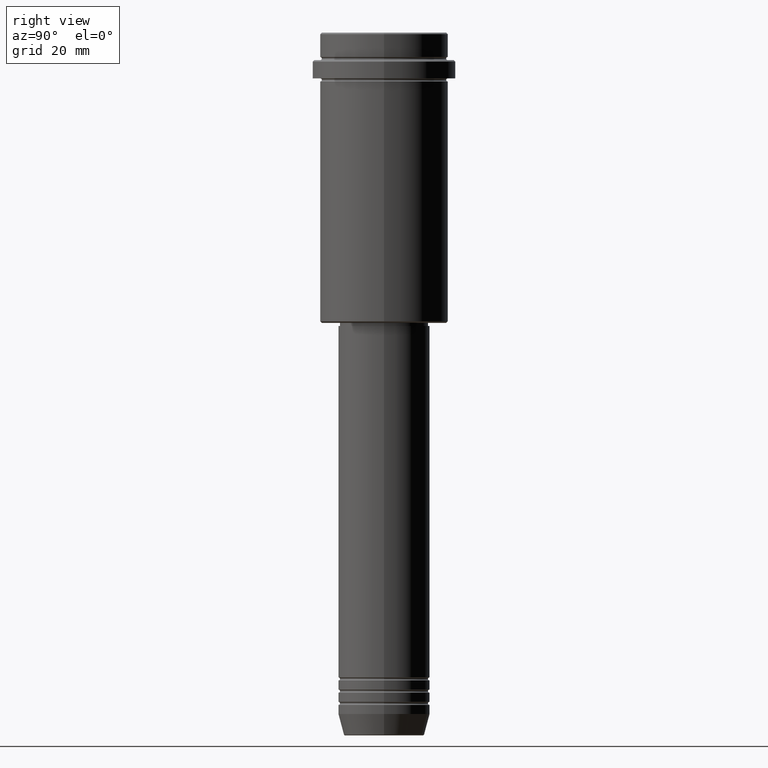
[diagram: clean part render]
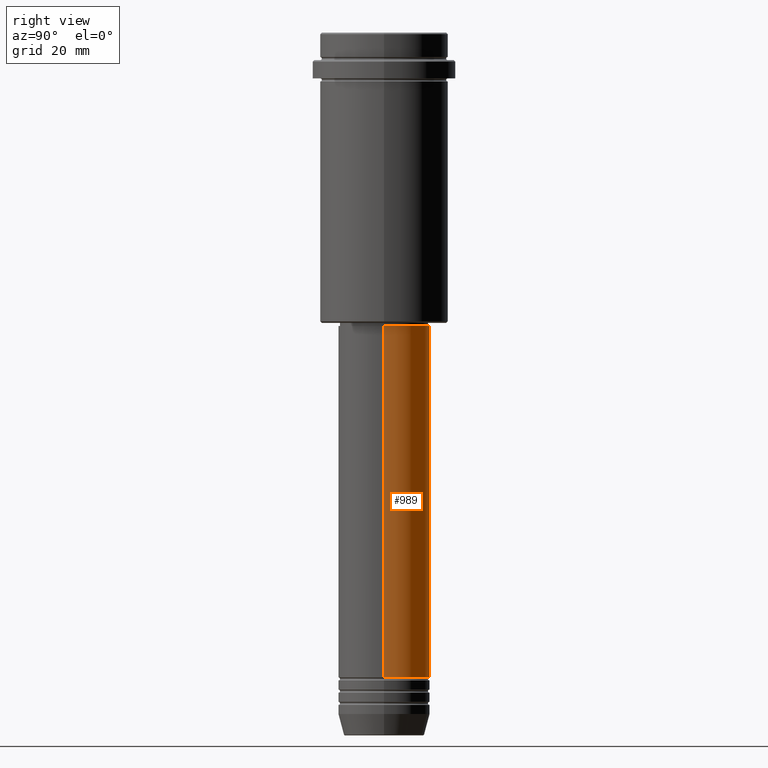
[diagram: same view with one face highlighted and labeled with its STEP entity id]
A machine part, right view. The second image highlights one B-rep face of the part: STEP entity #989.
In plain terms, the highlighted cylindrical surface (partial cylindrical patch) has radius 15 mm, axis along (-0, -0, 1).
Its self-contained STEP definition (entity closure, byte-faithful):
#12 = LINE ( 'NONE', #434, #1319 ) ;
#52 = ORIENTED_EDGE ( 'NONE', *, *, #64, .T. ) ;
#64 = EDGE_CURVE ( 'NONE', #1035, #1108, #1134, .T. ) ;
#89 = CARTESIAN_POINT ( 'NONE',  ( -15.00000000000000000, 1.836970198721029589E-15, -96.00000000000000000 ) ) ;
#219 = AXIS2_PLACEMENT_3D ( 'NONE', #1380, #391, #1172 ) ;
#302 = CARTESIAN_POINT ( 'NONE',  ( 15.00000000000000000, 0.000000000000000000, -210.9999999999999432 ) ) ;
#325 = CARTESIAN_POINT ( 'NONE',  ( -15.00000000000000000, 1.836970198721029589E-15, -210.9999999999999432 ) ) ;
#388 = CARTESIAN_POINT ( 'NONE',  ( 15.00000000000000000, 0.000000000000000000, -96.00000000000000000 ) ) ;
#391 = DIRECTION ( 'NONE',  ( -0.000000000000000000, -0.000000000000000000, 1.000000000000000000 ) ) ;
#401 = DIRECTION ( 'NONE',  ( 1.000000000000000000, 0.000000000000000000, 0.000000000000000000 ) ) ;
#432 = ORIENTED_EDGE ( 'NONE', *, *, #1142, .T. ) ;
#434 = CARTESIAN_POINT ( 'NONE',  ( -15.00000000000000000, 1.836970198721029589E-15, 0.000000000000000000 ) ) ;
#540 = DIRECTION ( 'NONE',  ( -0.000000000000000000, -0.000000000000000000, 1.000000000000000000 ) ) ;
#551 = VERTEX_POINT ( 'NONE', #89 ) ;
#566 = VECTOR ( 'NONE', #749, 1000.000000000000000 ) ;
#626 = EDGE_CURVE ( 'NONE', #1395, #551, #791, .T. ) ;
#749 = DIRECTION ( 'NONE',  ( -0.000000000000000000, -0.000000000000000000, 1.000000000000000000 ) ) ;
#751 = CARTESIAN_POINT ( 'NONE',  ( 0.000000000000000000, 0.000000000000000000, -96.00000000000000000 ) ) ;
#791 = CIRCLE ( 'NONE', #1335, 15.00000000000000000 ) ;
#843 = ORIENTED_EDGE ( 'NONE', *, *, #982, .F. ) ;
#873 = DIRECTION ( 'NONE',  ( -0.000000000000000000, -0.000000000000000000, 1.000000000000000000 ) ) ;
#926 = AXIS2_PLACEMENT_3D ( 'NONE', #985, #1196, #1393 ) ;
#979 = FACE_OUTER_BOUND ( 'NONE', #1112, .T. ) ;
#982 = EDGE_CURVE ( 'NONE', #1035, #1395, #1170, .T. ) ;
#985 = CARTESIAN_POINT ( 'NONE',  ( 0.000000000000000000, 0.000000000000000000, -210.9999999999999432 ) ) ;
#989 = ADVANCED_FACE ( 'NONE', ( #979 ), #1176, .T. ) ;
#1035 = VERTEX_POINT ( 'NONE', #302 ) ;
#1108 = VERTEX_POINT ( 'NONE', #325 ) ;
#1112 = EDGE_LOOP ( 'NONE', ( #52, #432, #1291, #843 ) ) ;
#1134 = CIRCLE ( 'NONE', #926, 15.00000000000000000 ) ;
#1142 = EDGE_CURVE ( 'NONE', #1108, #551, #12, .T. ) ;
#1170 = LINE ( 'NONE', #1290, #566 ) ;
#1172 = DIRECTION ( 'NONE',  ( 1.000000000000000000, 0.000000000000000000, 0.000000000000000000 ) ) ;
#1176 = CYLINDRICAL_SURFACE ( 'NONE', #219, 15.00000000000000000 ) ;
#1196 = DIRECTION ( 'NONE',  ( -0.000000000000000000, -0.000000000000000000, 1.000000000000000000 ) ) ;
#1290 = CARTESIAN_POINT ( 'NONE',  ( 15.00000000000000000, 0.000000000000000000, 0.000000000000000000 ) ) ;
#1291 = ORIENTED_EDGE ( 'NONE', *, *, #626, .F. ) ;
#1319 = VECTOR ( 'NONE', #873, 1000.000000000000000 ) ;
#1335 = AXIS2_PLACEMENT_3D ( 'NONE', #751, #540, #401 ) ;
#1380 = CARTESIAN_POINT ( 'NONE',  ( 0.000000000000000000, 0.000000000000000000, 0.000000000000000000 ) ) ;
#1393 = DIRECTION ( 'NONE',  ( 1.000000000000000000, 0.000000000000000000, 0.000000000000000000 ) ) ;
#1395 = VERTEX_POINT ( 'NONE', #388 ) ;